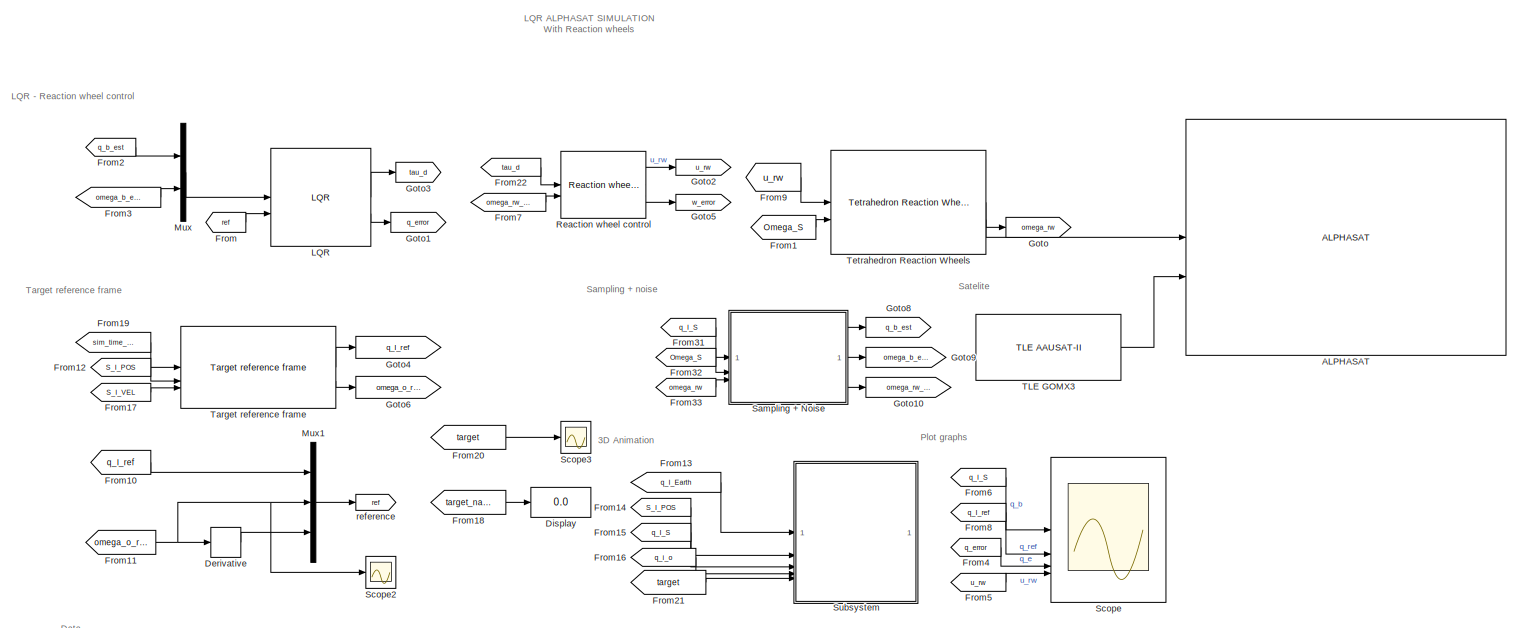
[diagram: root canvas - part 1/2, most of the canvas]
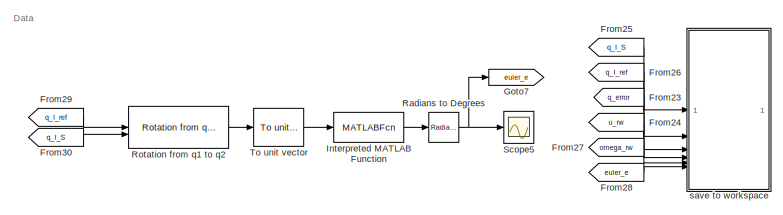
[diagram: root canvas - part 2/2, bottom left region]
MODEL slx_f4c35464e273
KIND model
CONFIG AbsTol = auto
CONFIG EnableMultiTasking = on
CONFIG FixedStep = auto
CONFIG InitFcn = load('lqr_gain','-mat');
CONFIG MaxStep = auto
CONFIG MinStep = auto
CONFIG RelTol = 1e-3
CONFIG SampleTimeConstraint = Unconstrained
CONFIG SolverName = VariableStepAuto
CONFIG StartTime = 0.0
CONFIG StopTime = 10000
WORKSPACE source: external: MAT-File  (data not in archive)
BLOCK [Reference] ALPHASAT  REF=aausat3_lib/ALPHASAT  (lib defined in mdl_4157f6465749, slx_d9305f96731e)
  SourceBlock = aausat3_lib/ALPHASAT
  SourceProductName = AAUSAT3
BLOCK [Derivative] Derivative
BLOCK [Display] Display
  Decimation = 1
BLOCK [From] From
  GotoTag = ref
BLOCK [From] From1
  GotoTag = Omega_S
  TagVisibility = global
BLOCK [From] From10
  GotoTag = q_I_ref
  TagVisibility = global
BLOCK [From] From11
  GotoTag = omega_o_ref
  TagVisibility = global
BLOCK [From] From12
  GotoTag = S_I_POS
  TagVisibility = global
BLOCK [From] From13
  CloseFcn = tagdialog Close
  GotoTag = q_I_Earth
  TagVisibility = global
BLOCK [From] From14
  GotoTag = S_I_POS
  TagVisibility = global
BLOCK [From] From15
  GotoTag = q_I_S
  TagVisibility = global
BLOCK [From] From16
  GotoTag = q_i_o
  TagVisibility = global
BLOCK [From] From17
  GotoTag = S_I_VEL
  TagVisibility = global
BLOCK [From] From18
  GotoTag = target_name
  TagVisibility = global
BLOCK [From] From19
  GotoTag = sim_time_JD
  TagVisibility = global
BLOCK [From] From2
  GotoTag = q_b_est
BLOCK [From] From20
  GotoTag = target
  TagVisibility = global
BLOCK [From] From21
  GotoTag = target
  TagVisibility = global
BLOCK [From] From22
  GotoTag = tau_d
BLOCK [From] From23
  GotoTag = q_error
BLOCK [From] From24
  GotoTag = u_rw
BLOCK [From] From25
  GotoTag = q_I_S
  TagVisibility = global
BLOCK [From] From26
  GotoTag = q_I_ref
  TagVisibility = global
BLOCK [From] From27
  GotoTag = omega_rw
BLOCK [From] From28
  GotoTag = euler_e
BLOCK [From] From29
  GotoTag = q_I_ref
  TagVisibility = global
BLOCK [From] From3
  GotoTag = omega_b_est
BLOCK [From] From30
  GotoTag = q_I_S
  TagVisibility = global
BLOCK [From] From31
  GotoTag = q_I_S
  TagVisibility = global
BLOCK [From] From32
  GotoTag = Omega_S
  TagVisibility = global
BLOCK [From] From33
  GotoTag = omega_rw
BLOCK [From] From4
  GotoTag = q_error
BLOCK [From] From5
  GotoTag = u_rw
BLOCK [From] From6
  GotoTag = q_I_S
  TagVisibility = global
BLOCK [From] From7
  GotoTag = omega_rw_est
BLOCK [From] From8
  GotoTag = q_I_ref
  TagVisibility = global
BLOCK [From] From9
  GotoTag = u_rw
BLOCK [Goto] Goto
  GotoTag = omega_rw
BLOCK [Goto] Goto1
  GotoTag = q_error
BLOCK [Goto] Goto10
  GotoTag = omega_rw_est
BLOCK [Goto] Goto2
  GotoTag = u_rw
BLOCK [Goto] Goto3
  GotoTag = tau_d
BLOCK [Goto] Goto4
  GotoTag = q_I_ref
  TagVisibility = global
BLOCK [Goto] Goto5
  GotoTag = w_error
BLOCK [Goto] Goto6
  GotoTag = omega_o_ref
  TagVisibility = global
BLOCK [Goto] Goto7
  GotoTag = euler_e
BLOCK [Goto] Goto8
  GotoTag = q_b_est
BLOCK [Goto] Goto9
  GotoTag = omega_b_est
BLOCK [MATLABFcn] Interpreted MATLAB Function
  MATLABFcn = quat2eul([u(4),u(1),u(2),u(3)])
BLOCK [Reference] LQR  REF=aausat3_lib/ACS/LQR  (lib defined in mdl_4157f6465749, slx_d9305f96731e)
  SourceBlock = aausat3_lib/ACS/LQR
  SourceProductName = AAUSAT3
BLOCK [Mux] Mux
  DisplayOption = bar
  Inputs = 2
BLOCK [Mux] Mux1
  DisplayOption = bar
  Inputs = 3
BLOCK [Reference] Radians to Degrees  REF=simulink_extras/Transformations/Radians
to Degrees
  SourceBlock = simulink_extras/Transformations/Radians\nto Degrees
  SourceType = RadiansToDegrees
BLOCK [Reference] Reaction wheel control  REF=aausat3_lib/ACS/Reaction wheel control  (lib defined in mdl_4157f6465749, slx_d9305f96731e)
  SourceBlock = aausat3_lib/ACS/Reaction wheel control
  SourceProductName = AAUSAT3
BLOCK [Reference] Rotation from q1 to q2  REF=aausat3_lib/Math Utilities/Quaternion operations/Rotation from q1 to q2  (lib defined in mdl_4157f6465749, slx_d9305f96731e)
  SourceBlock = aausat3_lib/Math Utilities/Quaternion operations/Rotation from q1 to q2
  SourceProductName = AAUSAT3
  SourceType = SubSystem
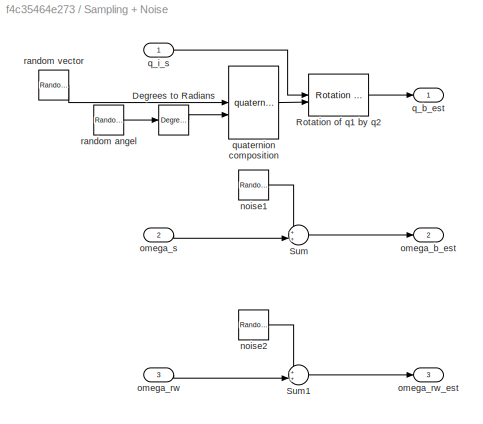
BLOCK [SubSystem] Sampling + Noise
BLOCK [Reference] Sampling + Noise/Degrees to Radians  REF=simulink_extras/Transformations/Degrees to
Radians
  SourceBlock = simulink_extras/Transformations/Degrees to\nRadians
  SourceType = DegreesToRadians
BLOCK [Reference] Sampling + Noise/Rotation of q1 by q2  REF=aausat3_lib/Math Utilities/Quaternion operations/Rotation of q1 by q2  (lib defined in mdl_4157f6465749, slx_d9305f96731e)
  SourceBlock = aausat3_lib/Math Utilities/Quaternion operations/Rotation of q1 by q2
  SourceProductName = AAUSAT3
  SourceType = SubSystem
BLOCK [Sum] Sampling + Noise/Sum
  Inputs = ++|
BLOCK [Sum] Sampling + Noise/Sum1
  Inputs = ++|
BLOCK [RandomNumber] Sampling + Noise/noise1
  Mean = zeros(3,1)
  Seed = [123 1231 54]'
  Variance = ones(3,1)*0.00012
BLOCK [RandomNumber] Sampling + Noise/noise2
  Mean = zeros(4,1)
  Seed = [34 50 30 23]'
  Variance = ones(4,1)*0.1
BLOCK [Outport] Sampling + Noise/omega_b_est
  Port = 2
BLOCK [Inport] Sampling + Noise/omega_rw
  Port = 3
BLOCK [Outport] Sampling + Noise/omega_rw_est
  Port = 3
BLOCK [Inport] Sampling + Noise/omega_s
  Port = 2
BLOCK [Outport] Sampling + Noise/q_b_est
BLOCK [Inport] Sampling + Noise/q_i_s
BLOCK [Reference] Sampling + Noise/quaternion composition  REF=aausat3_lib/Math Utilities/Quaternion operations/quaternion composition  (lib defined in mdl_4157f6465749, slx_d9305f96731e)
  SourceBlock = aausat3_lib/Math Utilities/Quaternion operations/quaternion composition
  SourceProductName = AAUSAT3
  SourceType = SubSystem
BLOCK [RandomNumber] Sampling + Noise/random angel
  Seed = 76
  Variance = 6.25
BLOCK [RandomNumber] Sampling + Noise/random vector
  Mean = zeros(3,1)
  Seed = [45 23 67]'
  Variance = ones(3,1)
BLOCK [Scope] Scope
  Floating = off
  NumInputPorts = 4
  ScopeSpecificationString = Simulink.scopes.TimeScopeBlockCfg('CurrentConfiguration', extmgr.ConfigurationSet(extmgr.Configuration('Core','General UI',true),extmgr.Configuration('Core','Source UI',true),extmgr.Configuration('Sources','WiredSimulink',true,'DataLoggingVariableName','ScopeData1'),extmgr.Configuration('Visuals','Time Domain',true,'SerializedDisplays',{struct('MinYLimReal','-1.10714','MaxYLimReal','0.60731','YLab...<+3432ch>
BLOCK [Scope] Scope2
  Floating = off
  NumInputPorts = 1
  ScopeSpecificationString = Simulink.scopes.TimeScopeBlockCfg('CurrentConfiguration', extmgr.ConfigurationSet(extmgr.Configuration('Core','General UI',true),extmgr.Configuration('Core','Source UI',true),extmgr.Configuration('Sources','WiredSimulink',true,'DataLoggingVariableName','ScopeData1'),extmgr.Configuration('Visuals','Time Domain',true,'SerializedDisplays',{struct('MinYLimReal','-0.001','MaxYLimReal','0.00008','YLabel...<+1782ch>
BLOCK [Scope] Scope3
  Floating = off
  NumInputPorts = 1
  ScopeSpecificationString = Simulink.scopes.TimeScopeBlockCfg('CurrentConfiguration', extmgr.ConfigurationSet(extmgr.Configuration('Core','General UI',true),extmgr.Configuration('Core','Source UI',true),extmgr.Configuration('Sources','WiredSimulink',true,'DataLoggingVariableName','ScopeData2'),extmgr.Configuration('Visuals','Time Domain',true,'SerializedDisplays',{struct('MinYLimReal','-6465076.1905','MaxYLimReal','4656929.5...<+1753ch>
BLOCK [Scope] Scope5
  Floating = off
  NumInputPorts = 1
  ScopeSpecificationString = Simulink.scopes.TimeScopeBlockCfg('CurrentConfiguration', extmgr.ConfigurationSet(extmgr.Configuration('Core','General UI',true),extmgr.Configuration('Core','Source UI',true),extmgr.Configuration('Sources','WiredSimulink',true,'DataLoggingVariableName','ScopeData1'),extmgr.Configuration('Visuals','Time Domain',true,'SerializedDisplays',{struct('MinYLimReal','-99.05325','MaxYLimReal','59.62949','YL...<+1753ch>
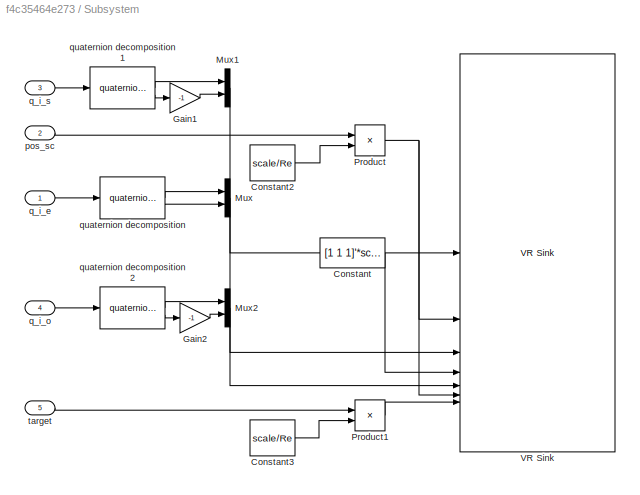
BLOCK [SubSystem] Subsystem
BLOCK [Constant] Subsystem/Constant
  Value = [1 1 1]'*scale
BLOCK [Constant] Subsystem/Constant2
  Value = scale/Re
BLOCK [Constant] Subsystem/Constant3
  Value = scale/Re
BLOCK [Gain] Subsystem/Gain1
  Gain = -1
BLOCK [Gain] Subsystem/Gain2
  Gain = -1
BLOCK [Mux] Subsystem/Mux
  DisplayOption = bar
  Inputs = 2
BLOCK [Mux] Subsystem/Mux1
  DisplayOption = bar
  Inputs = 2
BLOCK [Mux] Subsystem/Mux2
  DisplayOption = bar
  Inputs = 2
BLOCK [Product] Subsystem/Product
BLOCK [Product] Subsystem/Product1
BLOCK [Reference] Subsystem/VR Sink  REF=vrlib/VR Sink
  InstantiateOnLoad = on
  SourceBlock = vrlib/VR Sink
  SourceType = Virtual Reality Sink
BLOCK [Inport] Subsystem/pos_sc
  Port = 2
BLOCK [Inport] Subsystem/q_i_e
BLOCK [Inport] Subsystem/q_i_o
  Port = 4
BLOCK [Inport] Subsystem/q_i_s
  Port = 3
BLOCK [Reference] Subsystem/quaternion decomposition  REF=aausat3_lib/Math Utilities/Quaternion operations/quaternion decomposition  (lib defined in mdl_4157f6465749, slx_d9305f96731e)
  SourceBlock = aausat3_lib/Math Utilities/Quaternion operations/quaternion decomposition
  SourceProductName = AAUSAT3
  SourceType = SubSystem
BLOCK [Reference] Subsystem/quaternion decomposition1  REF=aausat3_lib/Math Utilities/Quaternion operations/quaternion decomposition  (lib defined in mdl_4157f6465749, slx_d9305f96731e)
  SourceBlock = aausat3_lib/Math Utilities/Quaternion operations/quaternion decomposition
  SourceProductName = AAUSAT3
  SourceType = SubSystem
BLOCK [Reference] Subsystem/quaternion decomposition2  REF=aausat3_lib/Math Utilities/Quaternion operations/quaternion decomposition  (lib defined in mdl_4157f6465749, slx_d9305f96731e)
  SourceBlock = aausat3_lib/Math Utilities/Quaternion operations/quaternion decomposition
  SourceProductName = AAUSAT3
  SourceType = SubSystem
BLOCK [Inport] Subsystem/target
  Port = 5
BLOCK [Reference] TLE GOMX3  REF=aausat3_lib/Orbit and Ephemeris/TLE AAUSAT-II  (lib defined in mdl_4157f6465749, slx_d9305f96731e)
  SourceBlock = aausat3_lib/Orbit and Ephemeris/TLE AAUSAT-II
  SourceProductName = AAUSAT3
BLOCK [Reference] Target reference frame  REF=aausat3_lib/Orbit and Ephemeris/Target reference frame  (lib defined in mdl_4157f6465749, slx_d9305f96731e)
  SourceBlock = aausat3_lib/Orbit and Ephemeris/Target reference frame
  SourceProductName = AAUSAT3
BLOCK [Reference] Tetrahedron Reaction Wheels  REF=aausat3_lib/Actuator Emulation/Tetrahedron Reaction Wheels  (lib defined in mdl_4157f6465749, slx_d9305f96731e)
  SourceBlock = aausat3_lib/Actuator Emulation/Tetrahedron Reaction Wheels
  SourceProductName = AAUSAT3
BLOCK [Reference] To unit vector  REF=aausat3_lib/Math Utilities/Vector operations/To unit vector  (lib defined in mdl_4157f6465749, slx_d9305f96731e)
  SourceBlock = aausat3_lib/Math Utilities/Vector operations/To unit vector
  SourceProductName = AAUSAT3
  SourceType = SubSystem
BLOCK [Goto] reference
  GotoTag = ref
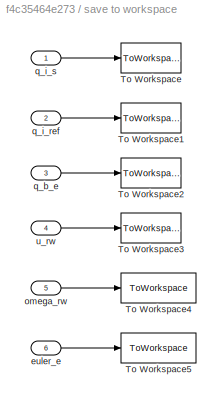
BLOCK [SubSystem] save to workspace
BLOCK [ToWorkspace] save to workspace/To Workspace
  FixptAsFi = on
  MaxDataPoints = inf
  SampleTime = -1
  SaveFormat = Timeseries
  VariableName = sim_q_s
BLOCK [ToWorkspace] save to workspace/To Workspace1
  FixptAsFi = on
  MaxDataPoints = inf
  SampleTime = -1
  SaveFormat = Timeseries
  VariableName = sim_q_ref
BLOCK [ToWorkspace] save to workspace/To Workspace2
  FixptAsFi = on
  MaxDataPoints = inf
  SampleTime = -1
  SaveFormat = Timeseries
  VariableName = sim_q_e
BLOCK [ToWorkspace] save to workspace/To Workspace3
  FixptAsFi = on
  MaxDataPoints = inf
  SampleTime = -1
  SaveFormat = Timeseries
  VariableName = sim_u_rw
BLOCK [ToWorkspace] save to workspace/To Workspace4
  FixptAsFi = on
  MaxDataPoints = inf
  SampleTime = -1
  SaveFormat = Timeseries
  VariableName = sim_omega_rw
BLOCK [ToWorkspace] save to workspace/To Workspace5
  FixptAsFi = on
  MaxDataPoints = inf
  SampleTime = -1
  SaveFormat = Timeseries
  VariableName = sim_euler_e
BLOCK [Inport] save to workspace/euler_e 
  Port = 6
BLOCK [Inport] save to workspace/omega_rw
  Port = 5
BLOCK [Inport] save to workspace/q_b_e
  Port = 3
BLOCK [Inport] save to workspace/q_i_ref
  Port = 2
BLOCK [Inport] save to workspace/q_i_s
BLOCK [Inport] save to workspace/u_rw
  Port = 4
ANNOTATION (root): LQR ALPHASAT SIMULATION With Reaction wheels
ANNOTATION (root): 3D Animation
ANNOTATION (root): Data
ANNOTATION (root): LQR - Reaction wheel control
ANNOTATION (root): Plot graphs
ANNOTATION (root): Sampling + noise
ANNOTATION (root): Satelite
ANNOTATION (root): Target reference frame
LINE Derivative:1 -> Mux1:3
LINE From10:1 -> Mux1:1
NET From11:1 -> Derivative:1, Mux1:2, Scope2:1
LINE From12:1 -> Target reference frame:2
LINE From13:1 -> Subsystem:1
LINE From14:1 -> Subsystem:2
LINE From15:1 -> Subsystem:3
LINE From16:1 -> Subsystem:4
LINE From17:1 -> Target reference frame:3
LINE From18:1 -> Display:1
LINE From19:1 -> Target reference frame:1
LINE From1:1 -> Tetrahedron Reaction Wheels:2
LINE From20:1 -> Scope3:1
LINE From21:1 -> Subsystem:5
LINE From22:1 -> Reaction wheel control:1
LINE From23:1 -> save to workspace:3
LINE From24:1 -> save to workspace:4
LINE From25:1 -> save to workspace:1
LINE From26:1 -> save to workspace:2
LINE From27:1 -> save to workspace:5
LINE From28:1 -> save to workspace:6
LINE From29:1 -> Rotation from q1 to q2:1
LINE From2:1 -> Mux:1
LINE From30:1 -> Rotation from q1 to q2:2
LINE From31:1 -> Sampling + Noise:1
LINE From32:1 -> Sampling + Noise:2
LINE From33:1 -> Sampling + Noise:3
LINE From3:1 -> Mux:2
LINE From4:1 -> Scope:3
LINE From5:1 -> Scope:4
LINE From6:1 -> Scope:1
LINE From7:1 -> Reaction wheel control:2
LINE From8:1 -> Scope:2
LINE From9:1 -> Tetrahedron Reaction Wheels:1
LINE From:1 -> LQR:2
LINE Interpreted MATLAB Function:1 -> Radians to Degrees:1
LINE LQR:1 -> Goto3:1
LINE LQR:2 -> Goto1:1
LINE Mux1:1 -> reference:1
LINE Mux:1 -> LQR:1
NET Radians to Degrees:1 -> Goto7:1, Scope5:1
LINE Reaction wheel control:1 -> Goto2:1
LINE Reaction wheel control:2 -> Goto5:1
LINE Rotation from q1 to q2:1 -> To unit vector:1
LINE Sampling + Noise/Degrees to Radians:1 -> Sampling + Noise/quaternion composition:2
LINE Sampling + Noise/Rotation of q1 by q2:1 -> Sampling + Noise/q_b_est:1
LINE Sampling + Noise/Sum1:1 -> Sampling + Noise/omega_rw_est:1
LINE Sampling + Noise/Sum:1 -> Sampling + Noise/omega_b_est:1
LINE Sampling + Noise/noise1:1 -> Sampling + Noise/Sum:1
LINE Sampling + Noise/noise2:1 -> Sampling + Noise/Sum1:1
LINE Sampling + Noise/omega_rw:1 -> Sampling + Noise/Sum1:2
LINE Sampling + Noise/omega_s:1 -> Sampling + Noise/Sum:2
LINE Sampling + Noise/q_i_s:1 -> Sampling + Noise/Rotation of q1 by q2:1
LINE Sampling + Noise/quaternion composition:1 -> Sampling + Noise/Rotation of q1 by q2:2
LINE Sampling + Noise/random angel:1 -> Sampling + Noise/Degrees to Radians:1
LINE Sampling + Noise/random vector:1 -> Sampling + Noise/quaternion composition:1
LINE Sampling + Noise:1 -> Goto8:1
LINE Sampling + Noise:2 -> Goto9:1
LINE Sampling + Noise:3 -> Goto10:1
LINE Subsystem/Constant2:1 -> Subsystem/Product:2
LINE Subsystem/Constant3:1 -> Subsystem/Product1:2
LINE Subsystem/Constant:1 -> Subsystem/VR Sink:4
LINE Subsystem/Gain1:1 -> Subsystem/Mux1:2
LINE Subsystem/Gain2:1 -> Subsystem/Mux2:2
LINE Subsystem/Mux1:1 -> Subsystem/VR Sink:1
LINE Subsystem/Mux2:1 -> Subsystem/VR Sink:5
LINE Subsystem/Mux:1 -> Subsystem/VR Sink:3
LINE Subsystem/Product1:1 -> Subsystem/VR Sink:7
NET Subsystem/Product:1 -> Subsystem/VR Sink:2, Subsystem/VR Sink:6
LINE Subsystem/pos_sc:1 -> Subsystem/Product:1
LINE Subsystem/q_i_e:1 -> Subsystem/quaternion decomposition:1
LINE Subsystem/q_i_o:1 -> Subsystem/quaternion decomposition2:1
LINE Subsystem/q_i_s:1 -> Subsystem/quaternion decomposition1:1
LINE Subsystem/quaternion decomposition1:1 -> Subsystem/Mux1:1
LINE Subsystem/quaternion decomposition1:2 -> Subsystem/Gain1:1
LINE Subsystem/quaternion decomposition2:1 -> Subsystem/Mux2:1
LINE Subsystem/quaternion decomposition2:2 -> Subsystem/Gain2:1
LINE Subsystem/quaternion decomposition:1 -> Subsystem/Mux:1
LINE Subsystem/quaternion decomposition:2 -> Subsystem/Mux:2
LINE Subsystem/target:1 -> Subsystem/Product1:1
LINE TLE GOMX3:1 -> ALPHASAT:2
LINE Target reference frame:1 -> Goto4:1
LINE Target reference frame:2 -> Goto6:1
LINE Tetrahedron Reaction Wheels:1 -> ALPHASAT:1
LINE Tetrahedron Reaction Wheels:2 -> Goto:1
LINE To unit vector:1 -> Interpreted MATLAB Function:1
LINE save to workspace/euler_e :1 -> save to workspace/To Workspace5:1
LINE save to workspace/omega_rw:1 -> save to workspace/To Workspace4:1
LINE save to workspace/q_b_e:1 -> save to workspace/To Workspace2:1
LINE save to workspace/q_i_ref:1 -> save to workspace/To Workspace1:1
LINE save to workspace/q_i_s:1 -> save to workspace/To Workspace:1
LINE save to workspace/u_rw:1 -> save to workspace/To Workspace3:1
note: NET lines group one-source signal fan-out (src -> all destinations, sorted); 1:1 wires keep LINE
